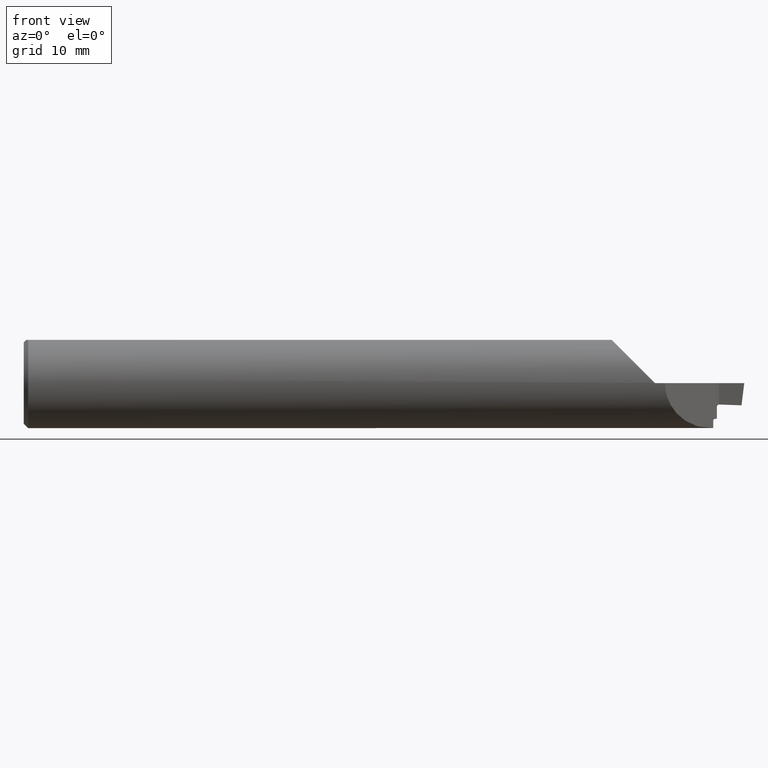
[diagram: clean part render]
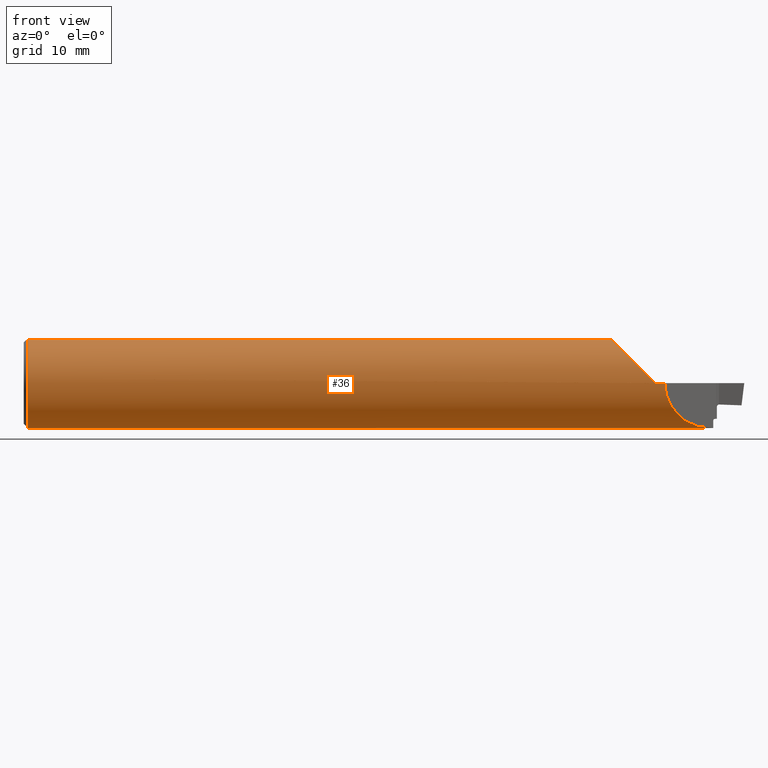
[diagram: same view with one face highlighted and labeled with its STEP entity id]
A machine part, front view. The second image highlights one B-rep face of the part: STEP entity #36.
In plain terms, the highlighted cylindrical surface (partial cylindrical patch) has radius 3.9649 mm, axis along (-1, -0, -0).
Its self-contained STEP definition (entity closure, byte-faithful):
#2 = ORIENTED_EDGE ( 'NONE', *, *, #414, .F. ) ;
#4 = CARTESIAN_POINT ( 'NONE',  ( 0.01499999999999970281, 0.04286257108480545641, 0.1500999999999999834 ) ) ;
#6 = EDGE_LOOP ( 'NONE', ( #67, #416, #729, #484, #2, #119, #803, #824, #792, #96, #342 ) ) ;
#10 = CARTESIAN_POINT ( 'NONE',  ( 1.460000000000000187, 0.04286257108480545641, 0.1500999999999999834 ) ) ;
#14 = EDGE_CURVE ( 'NONE', #31, #450, #366, .T. ) ;
#31 = VERTEX_POINT ( 'NONE', #818 ) ;
#36 = ADVANCED_FACE ( 'NONE', ( #694 ), #122, .T. ) ;
#38 = VERTEX_POINT ( 'NONE', #635 ) ;
#39 = CARTESIAN_POINT ( 'NONE',  ( 0.01499999999999970281, 0.000000000000000000, 0.000000000000000000 ) ) ;
#43 = CARTESIAN_POINT ( 'NONE',  ( 2.224999999999999645, -0.1560999999999999888, 0.000000000000000000 ) ) ;
#53 = CARTESIAN_POINT ( 'NONE',  ( 2.392508837550267220, 0.01140883755026705221, -0.1556825244712829459 ) ) ;
#67 = ORIENTED_EDGE ( 'NONE', *, *, #14, .F. ) ;
#71 = VERTEX_POINT ( 'NONE', #699 ) ;
#74 = LINE ( 'NONE', #268, #354 ) ;
#81 = DIRECTION ( 'NONE',  ( -1.000000000000000000, -0.000000000000000000, -0.000000000000000000 ) ) ;
#90 = AXIS2_PLACEMENT_3D ( 'NONE', #623, #597, #593 ) ;
#96 = ORIENTED_EDGE ( 'NONE', *, *, #788, .T. ) ;
#105 = DIRECTION ( 'NONE',  ( -1.000000000000000000, 4.086873660734437432E-17, -0.000000000000000000 ) ) ;
#118 = CIRCLE ( 'NONE', #294, 0.1560999999999999888 ) ;
#119 = ORIENTED_EDGE ( 'NONE', *, *, #379, .T. ) ;
#122 = CYLINDRICAL_SURFACE ( 'NONE', #251, 0.1560999999999999888 ) ;
#127 = VERTEX_POINT ( 'NONE', #4 ) ;
#172 = CARTESIAN_POINT ( 'NONE',  ( 0.000000000000000000, 0.04286257108480545641, 0.1500999999999999834 ) ) ;
#184 = CARTESIAN_POINT ( 'NONE',  ( 2.059871508359184311, -0.1124504032942231085, 0.1302284916408148197 ) ) ;
#197 =( BOUNDED_CURVE ( )  B_SPLINE_CURVE ( 3, ( #244, #634, #553, #53 ),
 .UNSPECIFIED., .F., .F. ) 
 B_SPLINE_CURVE_WITH_KNOTS ( ( 4, 4 ),
 ( 1.372087361718560494, 1.497644378797060138 ),
 .UNSPECIFIED. ) 
 CURVE ( )  GEOMETRIC_REPRESENTATION_ITEM ( )  RATIONAL_B_SPLINE_CURVE ( ( 1.000000000000000000, 0.9986867176927802792, 0.9986867176927802792, 1.000000000000000000 ) ) 
 REPRESENTATION_ITEM ( '' )  );
#219 = EDGE_CURVE ( 'NONE', #562, #71, #74, .T. ) ;
#224 = VERTEX_POINT ( 'NONE', #457 ) ;
#238 = DIRECTION ( 'NONE',  ( 0.000000000000000000, 1.000000000000000000, 0.000000000000000000 ) ) ;
#244 = CARTESIAN_POINT ( 'NONE',  ( 2.392170106203865387, 0.03081474338877097929, -0.1530283032314129488 ) ) ;
#251 = AXIS2_PLACEMENT_3D ( 'NONE', #497, #833, #506 ) ;
#268 = CARTESIAN_POINT ( 'NONE',  ( 0.000000000000000000, -0.04286257108480545641, 0.1500999999999999834 ) ) ;
#284 = CARTESIAN_POINT ( 'NONE',  ( 2.189999999999999947, -0.1560999999999999888, 0.000000000000000000 ) ) ;
#294 = AXIS2_PLACEMENT_3D ( 'NONE', #487, #561, #238 ) ;
#296 = LINE ( 'NONE', #172, #410 ) ;
#342 = ORIENTED_EDGE ( 'NONE', *, *, #808, .F. ) ;
#343 = EDGE_CURVE ( 'NONE', #71, #38, #464, .T. ) ;
#348 = DIRECTION ( 'NONE',  ( 1.000000000000000000, 0.000000000000000000, 0.000000000000000000 ) ) ;
#354 = VECTOR ( 'NONE', #81, 39.37007874015748143 ) ;
#358 = VERTEX_POINT ( 'NONE', #284 ) ;
#361 = CARTESIAN_POINT ( 'NONE',  ( 2.295931644576337138, -0.08516835542366303635, -0.1627599630562642785 ) ) ;
#366 = LINE ( 'NONE', #500, #466 ) ;
#369 = DIRECTION ( 'NONE',  ( 0.000000000000000000, 0.000000000000000000, -1.000000000000000000 ) ) ;
#379 = EDGE_CURVE ( 'NONE', #440, #562, #538, .T. ) ;
#386 = VECTOR ( 'NONE', #526, 39.37007874015748143 ) ;
#390 = EDGE_CURVE ( 'NONE', #796, #224, #516, .T. ) ;
#395 = AXIS2_PLACEMENT_3D ( 'NONE', #39, #348, #661 ) ;
#410 = VECTOR ( 'NONE', #551, 39.37007874015748143 ) ;
#414 = EDGE_CURVE ( 'NONE', #440, #358, #660, .T. ) ;
#416 = ORIENTED_EDGE ( 'NONE', *, *, #442, .T. ) ;
#422 = CARTESIAN_POINT ( 'NONE',  ( 2.392508837550267220, 0.01140883755026705221, -0.1556825244712829459 ) ) ;
#429 = CARTESIAN_POINT ( 'NONE',  ( 2.189999999999999947, -0.1560999679692472164, 9.999999999982123341E-05 ) ) ;
#440 = VERTEX_POINT ( 'NONE', #429 ) ;
#442 = EDGE_CURVE ( 'NONE', #31, #796, #197, .T. ) ;
#450 = VERTEX_POINT ( 'NONE', #760 ) ;
#457 = CARTESIAN_POINT ( 'NONE',  ( 2.224999999999999645, -0.1560999999999999888, 0.000000000000000000 ) ) ;
#464 = CIRCLE ( 'NONE', #395, 0.1560999999999999888 ) ;
#466 = VECTOR ( 'NONE', #105, 39.37007874015748143 ) ;
#484 = ORIENTED_EDGE ( 'NONE', *, *, #629, .T. ) ;
#487 = CARTESIAN_POINT ( 'NONE',  ( 1.460000000000000187, 0.000000000000000000, 0.000000000000000000 ) ) ;
#497 = CARTESIAN_POINT ( 'NONE',  ( 0.000000000000000000, 0.000000000000000000, 0.000000000000000000 ) ) ;
#500 = CARTESIAN_POINT ( 'NONE',  ( 1.928500000000000103, 0.03081474338883930311, -0.1530283032313956570 ) ) ;
#506 = DIRECTION ( 'NONE',  ( 0.000000000000000000, 0.000000000000000000, 1.000000000000000000 ) ) ;
#510 = LINE ( 'NONE', #646, #386 ) ;
#516 =( BOUNDED_CURVE ( )  B_SPLINE_CURVE ( 3, ( #620, #361, #677, #43 ),
 .UNSPECIFIED., .F., .T. ) 
 B_SPLINE_CURVE_WITH_KNOTS ( ( 4, 4 ),
 ( 4.639237032386853699, 6.283185307179586232 ),
 .UNSPECIFIED. ) 
 CURVE ( )  GEOMETRIC_REPRESENTATION_ITEM ( )  RATIONAL_B_SPLINE_CURVE ( ( 1.000000000000000000, 0.7871843310122479398, 0.7871843310122479398, 1.000000000000000000 ) ) 
 REPRESENTATION_ITEM ( '' )  );
#526 = DIRECTION ( 'NONE',  ( -1.000000000000000000, -0.000000000000000000, -0.000000000000000000 ) ) ;
#538 =( BOUNDED_CURVE ( )  B_SPLINE_CURVE ( 3, ( #693, #822, #184, #625 ),
 .UNSPECIFIED., .F., .T. ) 
 B_SPLINE_CURVE_WITH_KNOTS ( ( 4, 4 ),
 ( 4.713029595418896101, 6.005028202575334539 ),
 .UNSPECIFIED. ) 
 CURVE ( )  GEOMETRIC_REPRESENTATION_ITEM ( )  RATIONAL_B_SPLINE_CURVE ( ( 1.000000000000000000, 0.8656657255323875200, 0.8656657255323875200, 1.000000000000000000 ) ) 
 REPRESENTATION_ITEM ( '' )  );
#551 = DIRECTION ( 'NONE',  ( 1.000000000000000000, 0.000000000000000000, 0.000000000000000000 ) ) ;
#553 = CARTESIAN_POINT ( 'NONE',  ( 2.392395031202095179, 0.01792879887040398079, -0.1552047240258694893 ) ) ;
#561 = DIRECTION ( 'NONE',  ( 1.000000000000000000, -4.086873660734437432E-17, 0.000000000000000000 ) ) ;
#562 = VERTEX_POINT ( 'NONE', #574 ) ;
#572 = AXIS2_PLACEMENT_3D ( 'NONE', #754, #638, #369 ) ;
#574 = CARTESIAN_POINT ( 'NONE',  ( 2.039999999999999591, -0.04286257108480545641, 0.1500999999999999834 ) ) ;
#593 = DIRECTION ( 'NONE',  ( 0.000000000000000000, 0.000000000000000000, -1.000000000000000000 ) ) ;
#597 = DIRECTION ( 'NONE',  ( 1.000000000000000000, 0.000000000000000000, 0.000000000000000000 ) ) ;
#620 = CARTESIAN_POINT ( 'NONE',  ( 2.392508837550267220, 0.01140883755026705221, -0.1556825244712829459 ) ) ;
#623 = CARTESIAN_POINT ( 'NONE',  ( 0.01499999999999970281, 0.000000000000000000, 0.000000000000000000 ) ) ;
#625 = CARTESIAN_POINT ( 'NONE',  ( 2.039999999999999591, -0.04286257108480545641, 0.1500999999999999834 ) ) ;
#629 = EDGE_CURVE ( 'NONE', #224, #358, #510, .T. ) ;
#634 = CARTESIAN_POINT ( 'NONE',  ( 2.392281972275005941, 0.02440594046536306849, -0.1543188201707194895 ) ) ;
#635 = CARTESIAN_POINT ( 'NONE',  ( 0.01499999999999970281, 0.000000000000000000, -0.1560999999999999888 ) ) ;
#638 = DIRECTION ( 'NONE',  ( 1.000000000000000000, 0.000000000000000000, -0.000000000000000000 ) ) ;
#646 = CARTESIAN_POINT ( 'NONE',  ( 0.000000000000000000, -0.1560999999999999888, 0.000000000000000000 ) ) ;
#658 = VERTEX_POINT ( 'NONE', #10 ) ;
#660 = CIRCLE ( 'NONE', #572, 0.1560999999999999888 ) ;
#661 = DIRECTION ( 'NONE',  ( 0.000000000000000000, 0.000000000000000000, -1.000000000000000000 ) ) ;
#677 = CARTESIAN_POINT ( 'NONE',  ( 2.224999999999999645, -0.1560999999999999888, -0.09683617268174071757 ) ) ;
#693 = CARTESIAN_POINT ( 'NONE',  ( 2.189999999999999947, -0.1560999679692472164, 9.999999999982123341E-05 ) ) ;
#694 = FACE_OUTER_BOUND ( 'NONE', #6, .T. ) ;
#699 = CARTESIAN_POINT ( 'NONE',  ( 0.01499999999999953107, -0.04286257108480568540, 0.1500999999999999834 ) ) ;
#729 = ORIENTED_EDGE ( 'NONE', *, *, #390, .T. ) ;
#754 = CARTESIAN_POINT ( 'NONE',  ( 2.189999999999999947, 0.000000000000000000, 0.000000000000000000 ) ) ;
#760 = CARTESIAN_POINT ( 'NONE',  ( 1.460000000000000187, 0.03081474338883832820, -0.1530283032313958513 ) ) ;
#774 = EDGE_CURVE ( 'NONE', #38, #127, #811, .T. ) ;
#788 = EDGE_CURVE ( 'NONE', #127, #658, #296, .T. ) ;
#792 = ORIENTED_EDGE ( 'NONE', *, *, #774, .T. ) ;
#796 = VERTEX_POINT ( 'NONE', #422 ) ;
#803 = ORIENTED_EDGE ( 'NONE', *, *, #219, .T. ) ;
#808 = EDGE_CURVE ( 'NONE', #450, #658, #118, .T. ) ;
#811 = CIRCLE ( 'NONE', #90, 0.1560999999999999888 ) ;
#818 = CARTESIAN_POINT ( 'NONE',  ( 2.392170106203865387, 0.03081474338877097929, -0.1530283032314129488 ) ) ;
#822 = CARTESIAN_POINT ( 'NONE',  ( 2.117630523791210084, -0.1560536069884282118, 0.07246947620879010121 ) ) ;
#824 = ORIENTED_EDGE ( 'NONE', *, *, #343, .T. ) ;
#833 = DIRECTION ( 'NONE',  ( -1.000000000000000000, -0.000000000000000000, -0.000000000000000000 ) ) ;